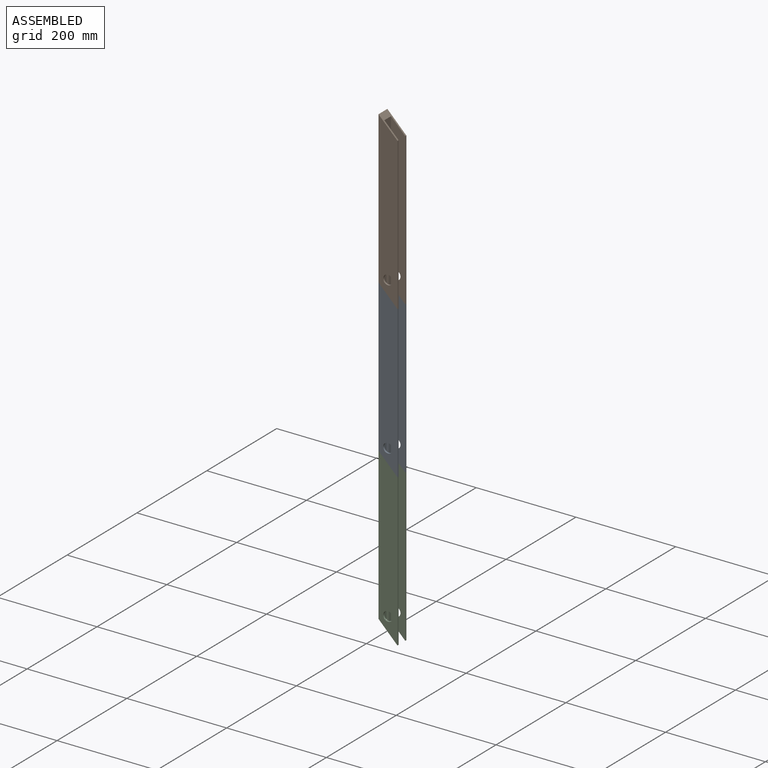
[diagram: assembled view]
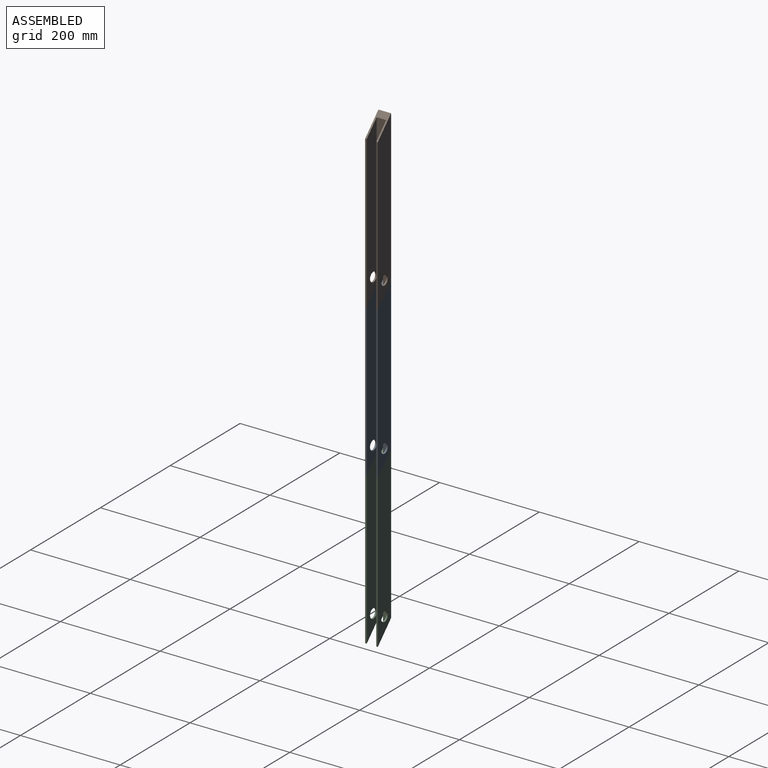
[diagram: assembled view, second angle]
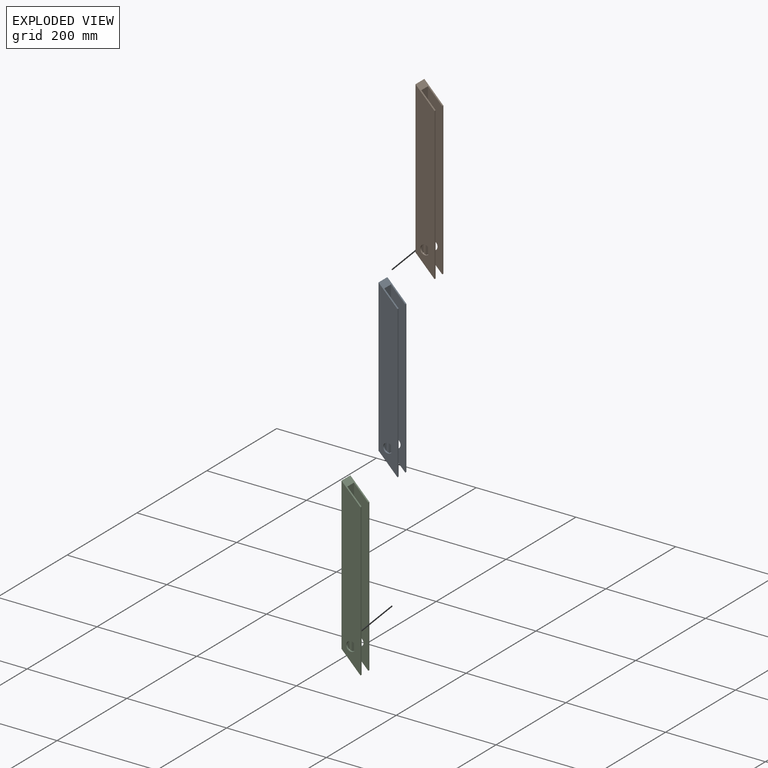
[diagram: exploded view]
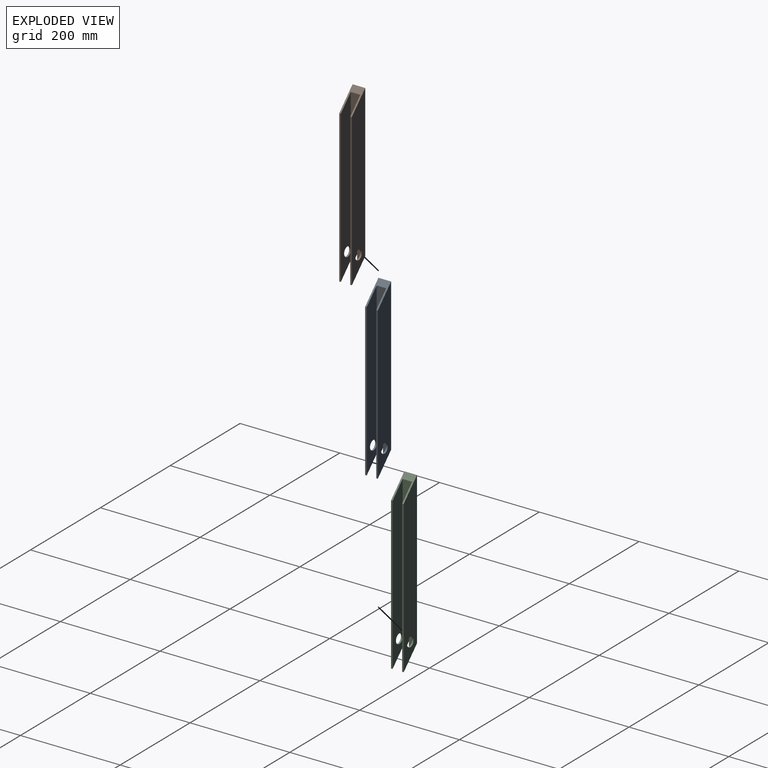
[diagram: exploded view, second angle]
ASSEMBLY  parts=3 mates=2
PART A: 16 faces, bbox 38.1x25.4x342.9 mm
  f0: plane 38.1x38.1mm, normal (-0.71,0,-0.71), area 256.6mm2, adj f3,f5,f8,f11,f12,f13
  f1: plane 304.8x3.18mm, normal (1,0,0), area 967.7mm2, adj f4,f6,f9,f10
  f2: cylinder r=9.53mm len=19.05mm, axis (0,1,0), area 190mm2, adj f8,f12
  f3: plane 304.8x3.18mm, normal (1,0,0), area 967.7mm2, adj f0,f4,f8,f12
  f4: plane 38.1x38.1mm, normal (0.71,0,0.71), area 598.8mm2, adj f1,f3,f5,f8,f9,f10,f11,f12
  f5: plane 304.8x25.4mm, normal (-1,0,0), area 7621mm2, adj f0,f4,f6,f8,f9,f13,f14,f15
  f6: plane 38.1x38.1mm, normal (-0.71,0,-0.71), area 256.6mm2, adj f1,f5,f9,f10,f11,f14
  f7: cylinder r=9.53mm len=19.05mm, axis (0,1,0), area 190mm2, adj f9,f10
  f8: plane 342.9x38.1mm, normal (0,-1,0), area 11327.9mm2, adj f0,f2,f3,f4,f5
  f9: plane 342.9x38.1mm, normal (0,1,0), area 11327.9mm2, adj f1,f4,f5,f6,f7
  f10: plane 333.38x28.58mm, normal (0,-1,0), area 8424.6mm2, adj f1,f4,f6,f7,f11
  f11: plane 304.8x19.05mm, normal (1,0,0), area 5625mm2, adj f0,f4,f6,f10,f12,f13,f14,f15
  f12: plane 333.38x28.58mm, normal (0,1,0), area 8424.6mm2, adj f0,f2,f3,f4,f11
  f13: plane 28.58x9.53mm, normal (0,1,0), area 226.8mm2, adj f0,f5,f11,f15
  f14: plane 28.58x9.53mm, normal (0,-1,0), area 226.8mm2, adj f5,f6,f11,f15
  f15: plane 9.53x6.35mm, normal (0,0,-1), area 60.5mm2, adj f5,f11,f13,f14
PART B: same geometry as A
PART C: same geometry as A
PLACE A rot(axis=(0.1,0.98,-0.16),0deg) t=(-41.63,33.99,120.21)mm
PLACE B rot(axis=(0.01,1,-0.03),0deg) t=(-41.63,33.99,425.01)mm
PLACE C t=(-41.63,33.99,-184.59)mm
MATE fastened A.f6 <-> C.f4  axis (-0.71,0,-0.71) through (-22.58,33.99,-203.64)mm
MATE fastened B.f0 <-> A.f4  axis (-0.71,0,-0.71) through (-22.58,8.59,101.16)mm
